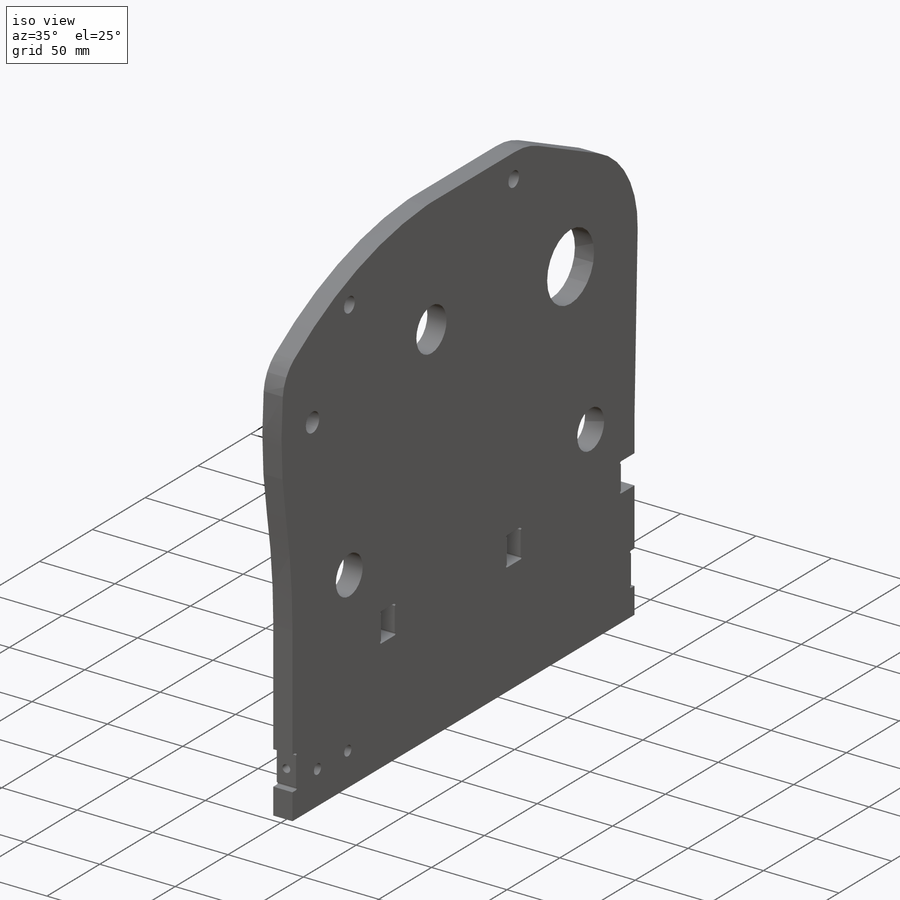
[diagram: iso view]
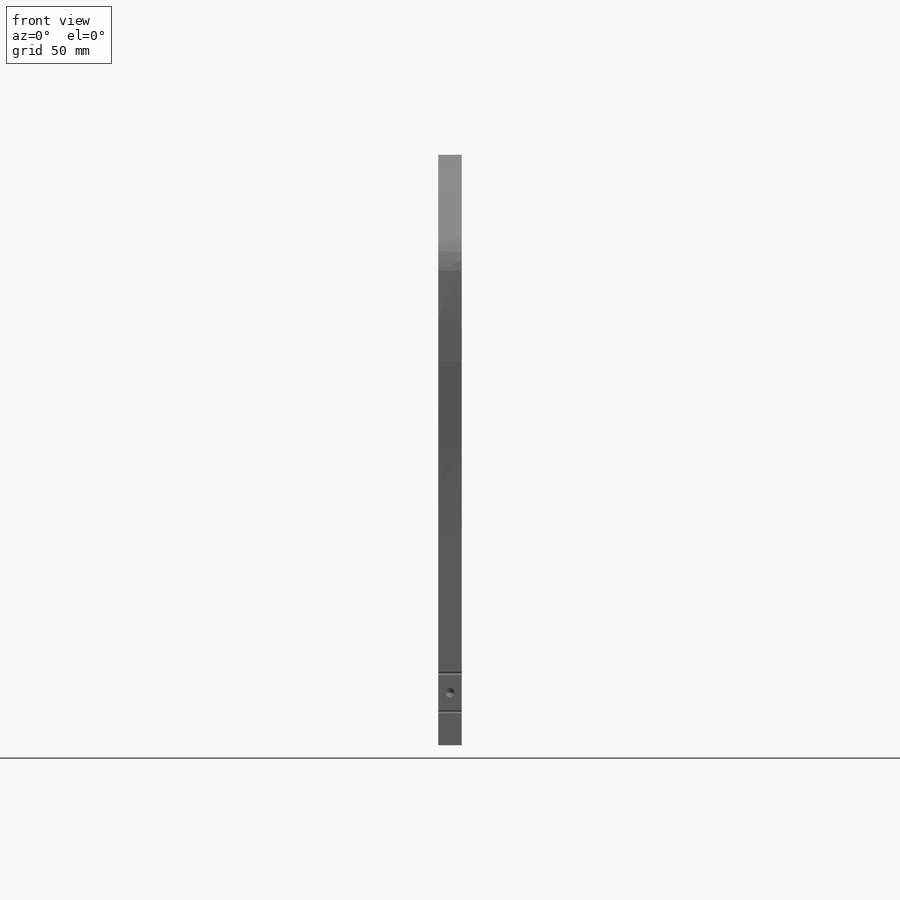
[diagram: front view]
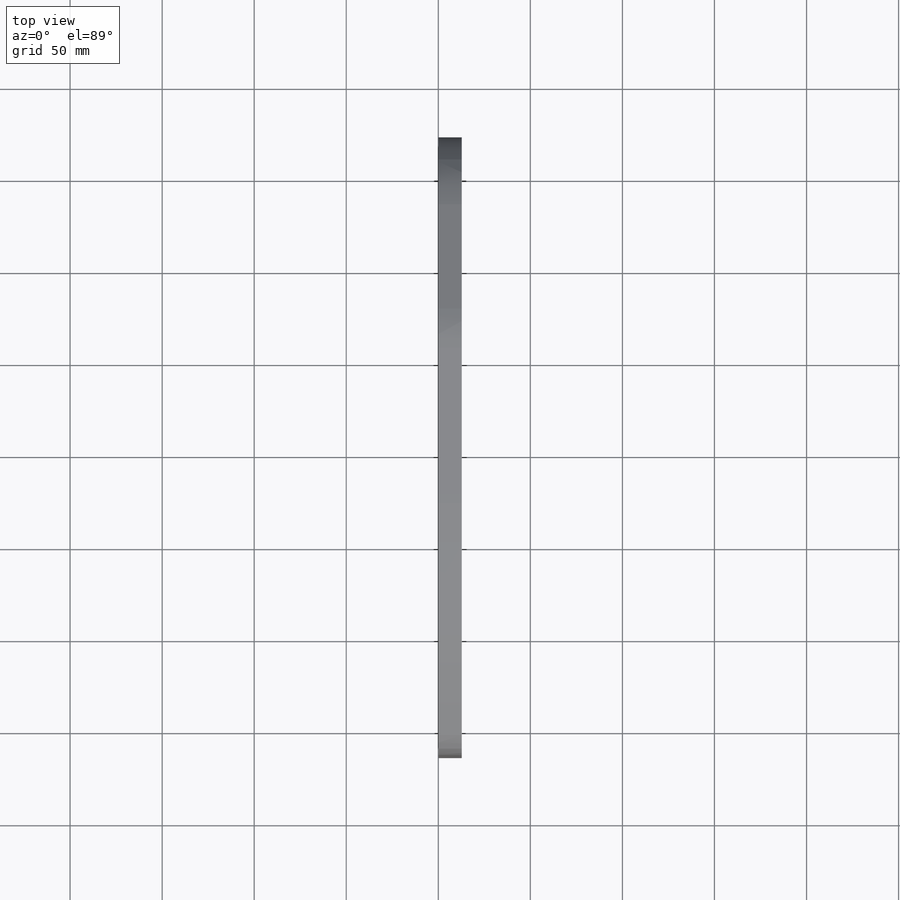
[diagram: top view]
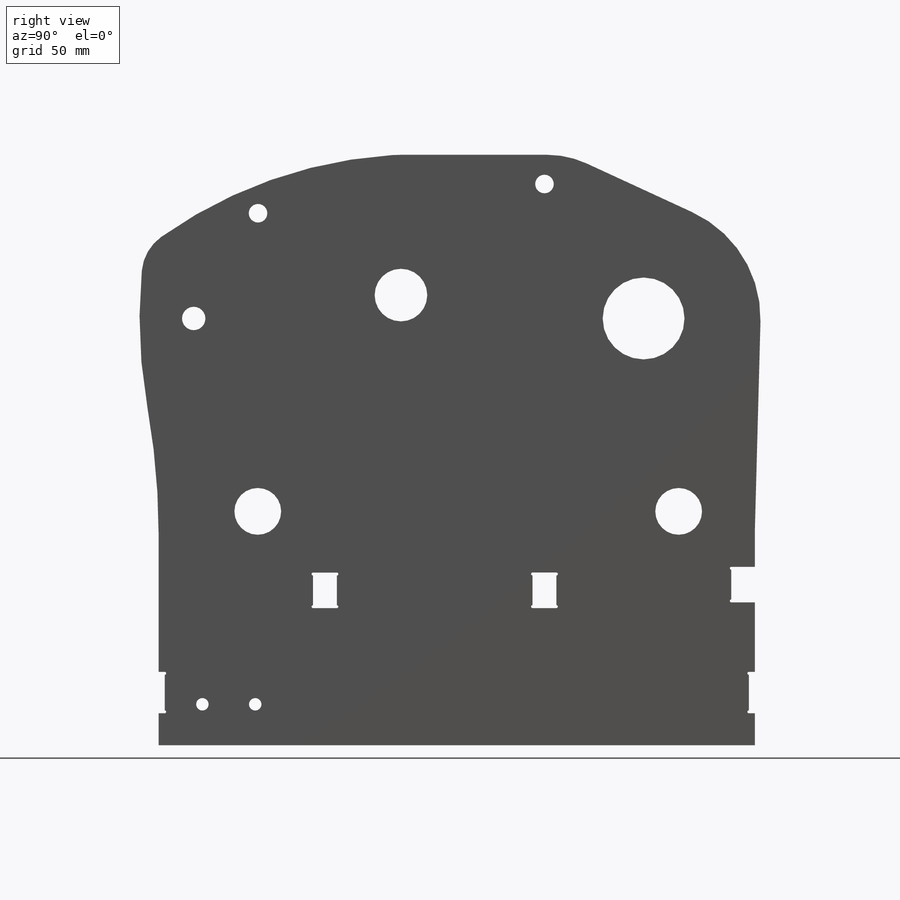
[diagram: right view]
SOLIDWORKS PART (.sldprt)
format: sldprt  version: not decoded by parser v0  size: 812,544 bytes
history: native  units: mm
features: sketch x25, extrude x8, cut_extrude x7, hole x5, fillet x2, material x1 (+13 scaffold rows collapsed)
feature tree (61):
  scaffold x13  (default folders/planes/origin — collapsed)
  material  "6061-T6 (SS)"
  sketch  "Sketch1"  dims[c1.D1=~9.285877mm c1.D3=~12.882042mm c1.D4=15.875mm c1.D5=101.6mm c1.D9=50.8mm c1.D10=67.31mm c1.D11=79.502mm c1.D12=46.736mm c2.D1=38.1mm c2.D2=50.8mm c2.D3=71.755mm c2.D6=254.0mm c2.D7=38.1mm c2.D8=38.1mm c3.D1=558.8mm c3.D2=88.9mm]
  extrude  "Boss-Extrude1"  Depth=12.7mm
  sketch  "Sketch2"  dims[c1.D1=25.4mm c1.D2=63.5mm c1.D3=127.0mm c1.D4=127.0mm c1.D5=76.2mm c1.D6=254.0mm c1.D7=196.85mm c2.D5=~79.056862mm c3.D5=45.0deg c4.D5=~58.544107mm c5.D5=45.0deg c6.D5=228.6mm]
  extrude  "Boss-Extrude2"  Depth=12.7mm
  sketch  "Sketch3"  dims[c1.D1=~58.544107mm c2.D1=45.0deg]
  extrude  "Boss-Extrude3"  Depth=12.7mm
  sketch  "Sketch4"
  cut_extrude  "Cut-Extrude1"  [1 undecoded]
  sketch  "Sketch5"  dims[c1.D1=50.8mm c1.D2=~117.554935mm c2.D1=323.85mm]
  cut_extrude  "Cut-Extrude2"  [1 undecoded]
  sketch  "Sketch6"  dims[c1.D1=~21.976223mm c1.D3=44.45mm c1.D4=88.9mm c2.D1=104.775mm c2.D2=19.05mm]
  extrude  "Boss-Extrude4"  Depth=12.7mm
  sketch  "Sketch7"  dims[c1.D1=152.4mm c1.D2=28.575mm c2.D1=~112.78262mm c2.D2=244.475mm c2.D3=132.3975mm]
  extrude  "Boss-Extrude5"  Depth=12.7mm
  sketch  "Sketch8"  dims[D1=~160.787691mm]
  extrude  "Boss-Extrude6"  Depth=12.7mm
  sketch  "Sketch9"  dims[c1.D1=12.7mm c1.D4=~241.411564mm c1.D6=76.2mm c1.D2=231.775mm c1.D3=304.8mm c2.D4=349.25mm c2.D5=254.0mm c2.D6=~168.828715mm]
  extrude  "Boss-Extrude7"  Depth=12.7mm
  sketch  "Sketch10"  dims[D1=0.0mm]
  cut_extrude  "Cut-Extrude3"  [1 undecoded]
  fillet  "Fillet2"  Radius=25.4mm
  sketch  "Sketch11"  dims[c1.D1=~69.856523mm c1.D2=~77.277179mm c2.D1=22.225mm c2.D2=3.175mm c3.D1=22.225mm c3.D2=3.175mm c4.D1=0.127mm]
  cut_extrude  "Cut-Extrude4"  [1 undecoded]
  sketch  "Sketch12"  dims[D1=1.5875mm]
  cut_extrude  "Cut-Extrude5"  [1 undecoded]
  hole  "1/4 Clearance Hole1"  Diameter=6.7564mm Depth=12.7mm
  sketch  "Sketch14"
  sketch  "Sketch13"  dims[hole-wizard template sketch: 61 standard entries collapsed; hole parameters above]
  hole  "1/4-20 Tapped Hole1"  Diameter=5.1054mm Depth=16.51mm
  sketch  "Sketch16"
  sketch  "Sketch15"  dims[hole-wizard template sketch: 50 standard entries collapsed; hole parameters above]
  hole  "1/4-20 Tapped Hole2"  Diameter=5.1054mm Depth=16.51mm
  sketch  "Sketch18"
  sketch  "Sketch17"  dims[hole-wizard template sketch: 50 standard entries collapsed; hole parameters above]
  sketch  "Sketch19"  dims[c1.D1=~14.837908mm c1.D2=~6.518067mm c2.D1=19.05mm c2.D2=12.7mm c3.D1=19.05mm c3.D2=12.7mm c4.D1=19.05mm c4.D2=12.7mm c5.D1=0.127mm]
  cut_extrude  "Cut-Extrude6"  [1 undecoded]
  sketch  "Sketch20"  dims[D1=1.5875mm]
  cut_extrude  "Cut-Extrude7"  [1 undecoded]
  sketch  "Sketch23"  dims[c1.D1=~2.26577mm c1.D2=101.6mm c2.D1=0.0mm]
  extrude  "Boss-Extrude8"  [1 undecoded]
  hole  "3/8 Clearance Hole1"  Diameter=10.0838mm Depth=12.7mm
  sketch  "Sketch22"  dims[D1=304.8mm D2=114.3mm D3=269.875mm D4=288.925mm]
  sketch  "Sketch21"  dims[hole-wizard template sketch: 50 standard entries collapsed; hole parameters above]
  fillet  "Fillet3"  Radius=50.8mm
  hole  "1/4 Clearance Hole2"  Diameter=6.7564mm Depth=12.7mm
  sketch  "Sketch25"
  sketch  "Sketch24"  dims[hole-wizard template sketch: 50 standard entries collapsed; hole parameters above]
decode coverage: 34 of 47 modeling features carry decoded parameters
note: ~ marks probable driven/reference dimensions
note: 8 parameter values undecoded
summary: no parameter record found for 8 features; Diameter pulled from absorbed wizard sketch
note: suppression state not decoded; provenance and decode notes live in map.json
